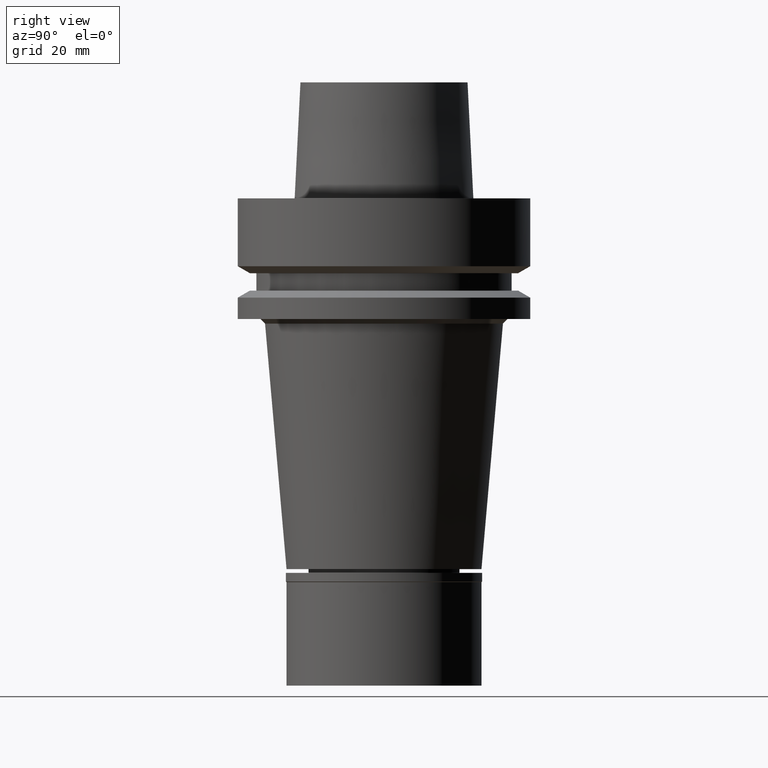
[diagram: clean part render]
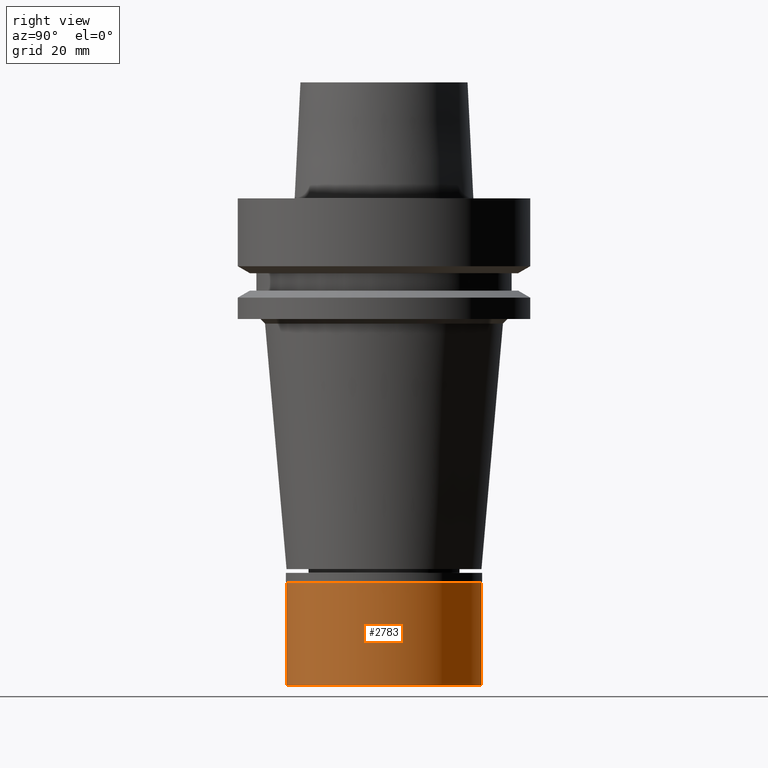
[diagram: same view with one face highlighted and labeled with its STEP entity id]
A machine part, right view. The second image highlights one B-rep face of the part: STEP entity #2783.
In plain terms, the highlighted cylindrical surface (partial cylindrical patch) has radius 21 mm, axis along (0, 0, -1).
Its self-contained STEP definition (entity closure, byte-faithful):
#1 = AXIS2_PLACEMENT_3D ( 'NONE', #1146, #527, #2262 ) ;
#45 = EDGE_CURVE ( 'NONE', #2351, #1226, #79, .T. ) ;
#79 = LINE ( 'NONE', #92, #368 ) ;
#92 = CARTESIAN_POINT ( 'NONE',  ( 0.0000000000000000000, -21.00000000000000000, -2.000000000000000000 ) ) ;
#185 = EDGE_CURVE ( 'NONE', #1183, #2351, #2680, .T. ) ;
#188 = LINE ( 'NONE', #846, #569 ) ;
#359 = DIRECTION ( 'NONE',  ( 0.0000000000000000000, -1.000000000000000000, 0.0000000000000000000 ) ) ;
#368 = VECTOR ( 'NONE', #728, 1000.000000000000000 ) ;
#527 = DIRECTION ( 'NONE',  ( 0.0000000000000000000, 0.0000000000000000000, -1.000000000000000000 ) ) ;
#569 = VECTOR ( 'NONE', #1741, 1000.000000000000000 ) ;
#603 = EDGE_LOOP ( 'NONE', ( #2115, #971, #2144, #1422 ) ) ;
#670 = CARTESIAN_POINT ( 'NONE',  ( 0.0000000000000000000, 0.0000000000000000000, 0.0000000000000000000 ) ) ;
#728 = DIRECTION ( 'NONE',  ( 0.0000000000000000000, 0.0000000000000000000, -1.000000000000000000 ) ) ;
#829 = CARTESIAN_POINT ( 'NONE',  ( 0.0000000000000000000, 21.00000000000000000, -2.000000000000000000 ) ) ;
#846 = CARTESIAN_POINT ( 'NONE',  ( 0.0000000000000000000, 21.00000000000000000, -2.000000000000000000 ) ) ;
#856 = AXIS2_PLACEMENT_3D ( 'NONE', #2806, #1558, #359 ) ;
#902 = AXIS2_PLACEMENT_3D ( 'NONE', #670, #1809, #911 ) ;
#911 = DIRECTION ( 'NONE',  ( 0.0000000000000000000, -1.000000000000000000, 0.0000000000000000000 ) ) ;
#919 = VERTEX_POINT ( 'NONE', #2776 ) ;
#921 = EDGE_CURVE ( 'NONE', #1183, #919, #188, .T. ) ;
#971 = ORIENTED_EDGE ( 'NONE', *, *, #45, .T. ) ;
#1146 = CARTESIAN_POINT ( 'NONE',  ( 0.0000000000000000000, 0.0000000000000000000, -2.000000000000000000 ) ) ;
#1183 = VERTEX_POINT ( 'NONE', #829 ) ;
#1226 = VERTEX_POINT ( 'NONE', #2485 ) ;
#1422 = ORIENTED_EDGE ( 'NONE', *, *, #921, .F. ) ;
#1558 = DIRECTION ( 'NONE',  ( 0.0000000000000000000, 0.0000000000000000000, 1.000000000000000000 ) ) ;
#1596 = FACE_OUTER_BOUND ( 'NONE', #603, .T. ) ;
#1685 = CARTESIAN_POINT ( 'NONE',  ( 0.0000000000000000000, -21.00000000000000000, -2.000000000000000000 ) ) ;
#1741 = DIRECTION ( 'NONE',  ( 0.0000000000000000000, 0.0000000000000000000, -1.000000000000000000 ) ) ;
#1809 = DIRECTION ( 'NONE',  ( 0.0000000000000000000, 0.0000000000000000000, -1.000000000000000000 ) ) ;
#2115 = ORIENTED_EDGE ( 'NONE', *, *, #185, .T. ) ;
#2144 = ORIENTED_EDGE ( 'NONE', *, *, #2536, .T. ) ;
#2262 = DIRECTION ( 'NONE',  ( 0.0000000000000000000, 1.000000000000000000, 0.0000000000000000000 ) ) ;
#2351 = VERTEX_POINT ( 'NONE', #1685 ) ;
#2485 = CARTESIAN_POINT ( 'NONE',  ( 0.0000000000000000000, -21.00000000000000000, -24.29999999999999716 ) ) ;
#2536 = EDGE_CURVE ( 'NONE', #1226, #919, #2556, .T. ) ;
#2556 = CIRCLE ( 'NONE', #856, 21.00000000000000000 ) ;
#2680 = CIRCLE ( 'NONE', #1, 21.00000000000000000 ) ;
#2705 = CYLINDRICAL_SURFACE ( 'NONE', #902, 21.00000000000000000 ) ;
#2776 = CARTESIAN_POINT ( 'NONE',  ( 0.0000000000000000000, 21.00000000000000000, -24.29999999999999716 ) ) ;
#2783 = ADVANCED_FACE ( 'NONE', ( #1596 ), #2705, .T. ) ;
#2806 = CARTESIAN_POINT ( 'NONE',  ( 0.0000000000000000000, 0.0000000000000000000, -24.29999999999999716 ) ) ;